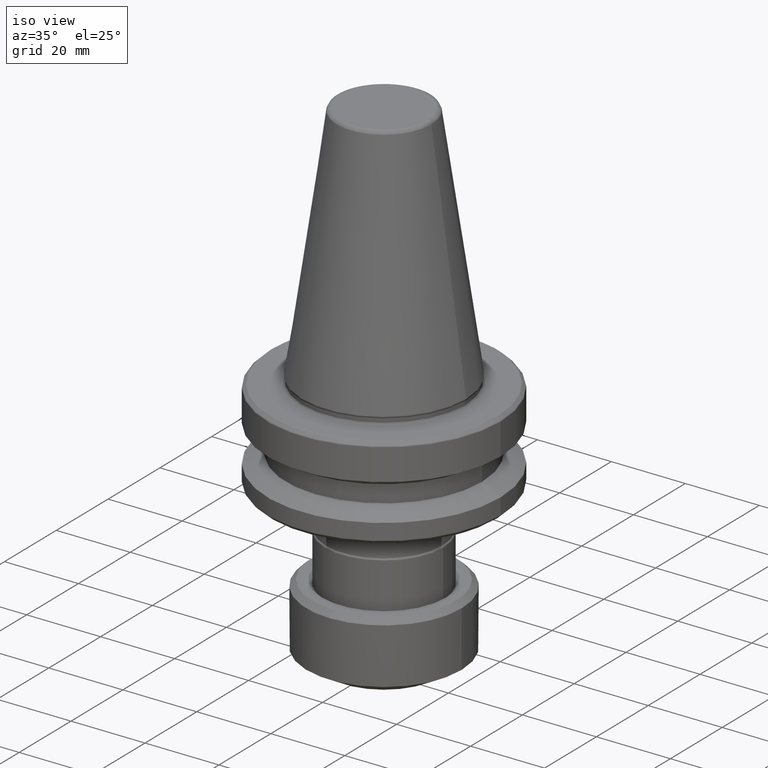
[diagram: clean part render]
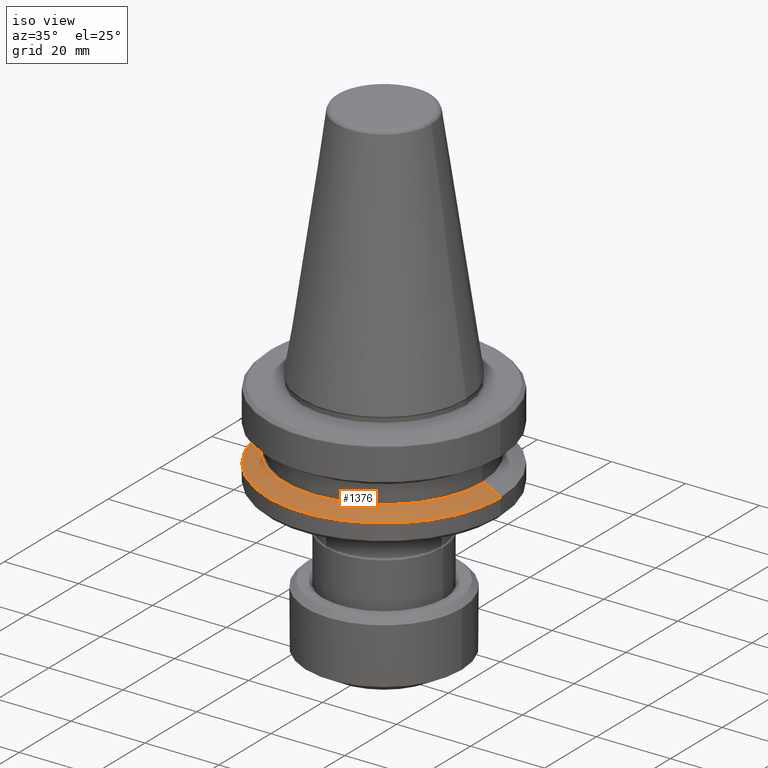
[diagram: same view with one face highlighted and labeled with its STEP entity id]
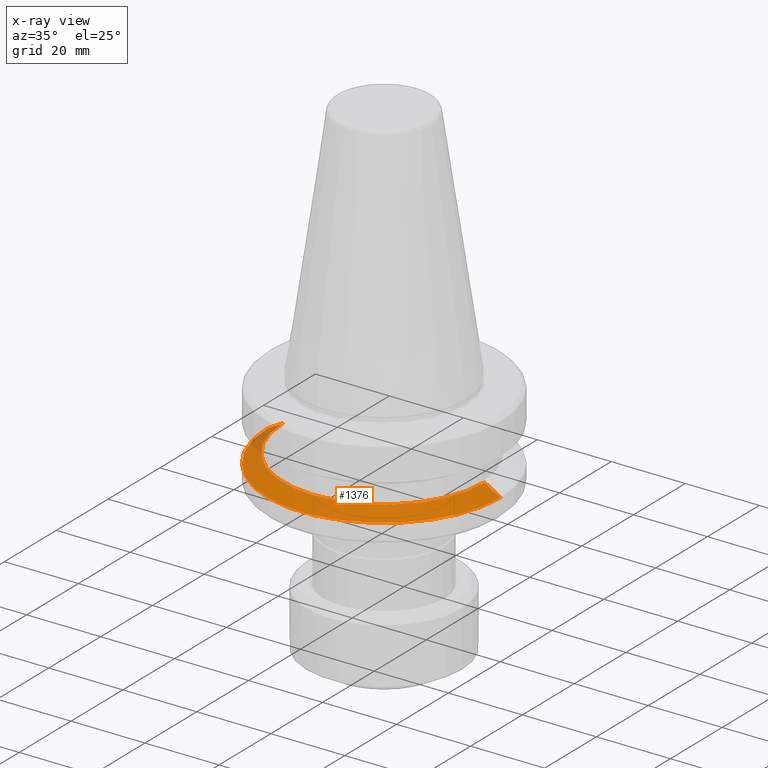
[diagram: x-ray of the same camera — body ghosted, the highlighted face saturated]
A machine part, iso view. The second image highlights one B-rep face of the part: STEP entity #1376.
The next image is the same camera in x-ray: the body ghosted, the highlighted face saturated — about 4% of this face is hidden behind the body in this view.
In plain terms, the highlighted conical surface has half-angle 60 deg.
Its self-contained STEP definition (entity closure, byte-faithful):
#253 = CIRCLE ( 'NONE', #777, 27.18372996999940500 ) ;
#276 = AXIS2_PLACEMENT_3D ( 'NONE', #294, #1843, #538 ) ;
#285 = CIRCLE ( 'NONE', #276, 31.50000000000000000 ) ;
#294 = CARTESIAN_POINT ( 'NONE',  ( 61.73341380625030400, 81.23534176582239800, 45.47593861832814400 ) ) ;
#435 = CONICAL_SURFACE ( 'NONE', #737, 27.18372996999940500, 1.047197551196599000 ) ;
#456 = FACE_OUTER_BOUND ( 'NONE', #1010, .T. ) ;
#471 = VECTOR ( 'NONE', #1839, 1000.000000000000000 ) ;
#524 = LINE ( 'NONE', #1649, #471 ) ;
#538 = DIRECTION ( 'NONE',  ( 1.000000000000000000, 0.0000000000000000000, 0.0000000000000000000 ) ) ;
#571 = VECTOR ( 'NONE', #1342, 1000.000000000000000 ) ;
#588 = LINE ( 'NONE', #1321, #571 ) ;
#609 = CARTESIAN_POINT ( 'NONE',  ( 61.73341380625030400, 81.23534176582239800, 47.96793828204409500 ) ) ;
#737 = AXIS2_PLACEMENT_3D ( 'NONE', #609, #2344, #2116 ) ;
#777 = AXIS2_PLACEMENT_3D ( 'NONE', #809, #2221, #1044 ) ;
#809 = CARTESIAN_POINT ( 'NONE',  ( 61.73341380625030400, 81.23534176582239800, 47.96793828204409500 ) ) ;
#813 = ORIENTED_EDGE ( 'NONE', *, *, #862, .F. ) ;
#862 = EDGE_CURVE ( 'NONE', #2379, #1296, #588, .T. ) ;
#893 = ORIENTED_EDGE ( 'NONE', *, *, #1921, .T. ) ;
#931 = CARTESIAN_POINT ( 'NONE',  ( 30.23341380625030400, 81.23534176582239800, 45.47593861832814400 ) ) ;
#1010 = EDGE_LOOP ( 'NONE', ( #813, #1749, #2541, #893 ) ) ;
#1044 = DIRECTION ( 'NONE',  ( 1.000000000000000000, 0.0000000000000000000, 0.0000000000000000000 ) ) ;
#1158 = CARTESIAN_POINT ( 'NONE',  ( 93.23341380625029700, 81.23534176582239800, 45.47593861832814400 ) ) ;
#1296 = VERTEX_POINT ( 'NONE', #1158 ) ;
#1321 = CARTESIAN_POINT ( 'NONE',  ( 88.91714377624970200, 81.23534176582239800, 47.96793828204409500 ) ) ;
#1323 = EDGE_CURVE ( 'NONE', #2164, #2472, #524, .T. ) ;
#1342 = DIRECTION ( 'NONE',  ( 0.8660254037844392600, 1.060575238724907700E-016, -0.4999999999999989500 ) ) ;
#1376 = ADVANCED_FACE ( 'NONE', ( #456 ), #435, .T. ) ;
#1649 = CARTESIAN_POINT ( 'NONE',  ( 34.54968383625090000, 81.23534176582239800, 47.96793828204409500 ) ) ;
#1713 = CARTESIAN_POINT ( 'NONE',  ( 34.54968383625090000, 81.23534176582239800, 47.96793828204409500 ) ) ;
#1749 = ORIENTED_EDGE ( 'NONE', *, *, #1952, .F. ) ;
#1839 = DIRECTION ( 'NONE',  ( -0.8660254037844392600, 0.0000000000000000000, -0.4999999999999989500 ) ) ;
#1843 = DIRECTION ( 'NONE',  ( -0.0000000000000000000, -0.0000000000000000000, 1.000000000000000000 ) ) ;
#1895 = CARTESIAN_POINT ( 'NONE',  ( 88.91714377624970200, 81.23534176582239800, 47.96793828204409500 ) ) ;
#1921 = EDGE_CURVE ( 'NONE', #2472, #1296, #285, .T. ) ;
#1952 = EDGE_CURVE ( 'NONE', #2164, #2379, #253, .T. ) ;
#2116 = DIRECTION ( 'NONE',  ( -1.000000000000000000, 0.0000000000000000000, 0.0000000000000000000 ) ) ;
#2164 = VERTEX_POINT ( 'NONE', #1713 ) ;
#2221 = DIRECTION ( 'NONE',  ( -0.0000000000000000000, -0.0000000000000000000, 1.000000000000000000 ) ) ;
#2344 = DIRECTION ( 'NONE',  ( 0.0000000000000000000, 0.0000000000000000000, -1.000000000000000000 ) ) ;
#2379 = VERTEX_POINT ( 'NONE', #1895 ) ;
#2472 = VERTEX_POINT ( 'NONE', #931 ) ;
#2541 = ORIENTED_EDGE ( 'NONE', *, *, #1323, .T. ) ;